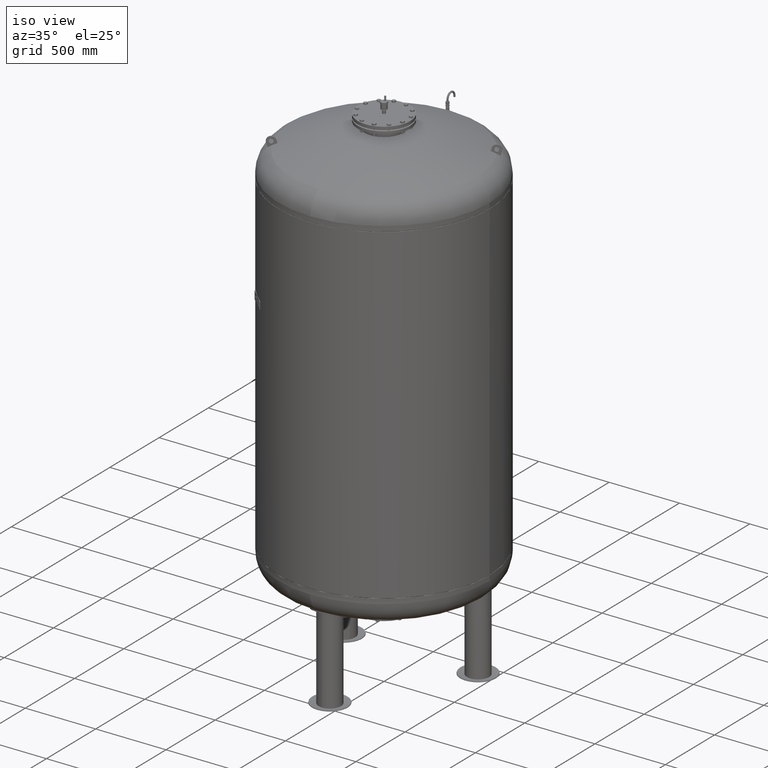
[diagram: clean part render]
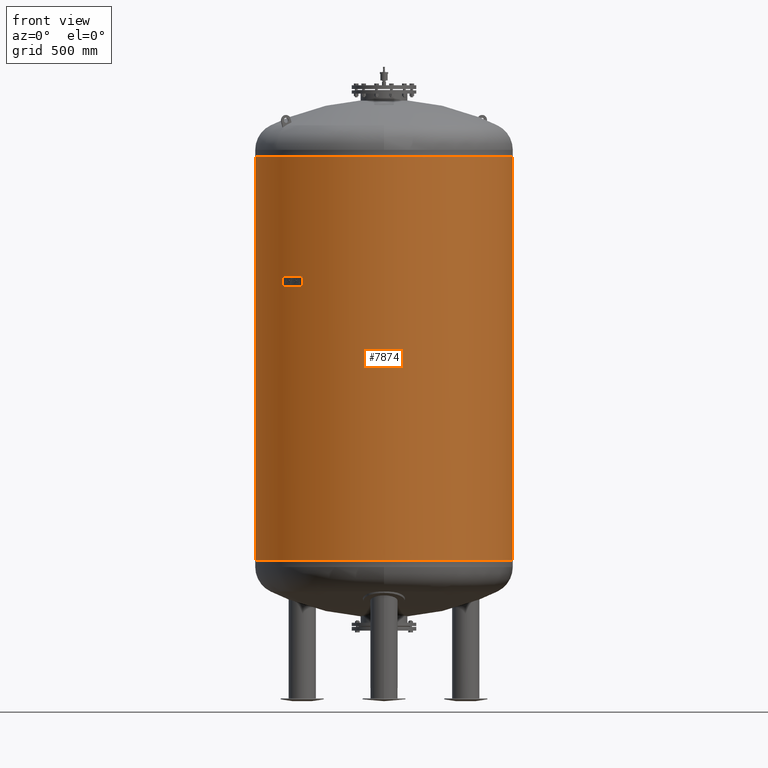
[diagram: tour spotlight — one face highlighted and labeled with its STEP entity id]
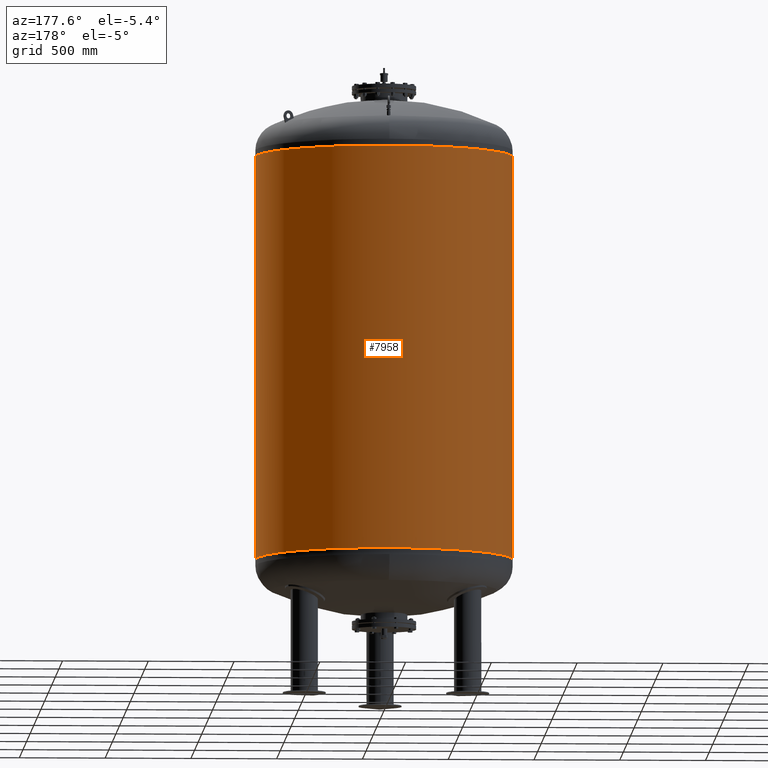
[diagram: tour spotlight — one face highlighted and labeled with its STEP entity id]
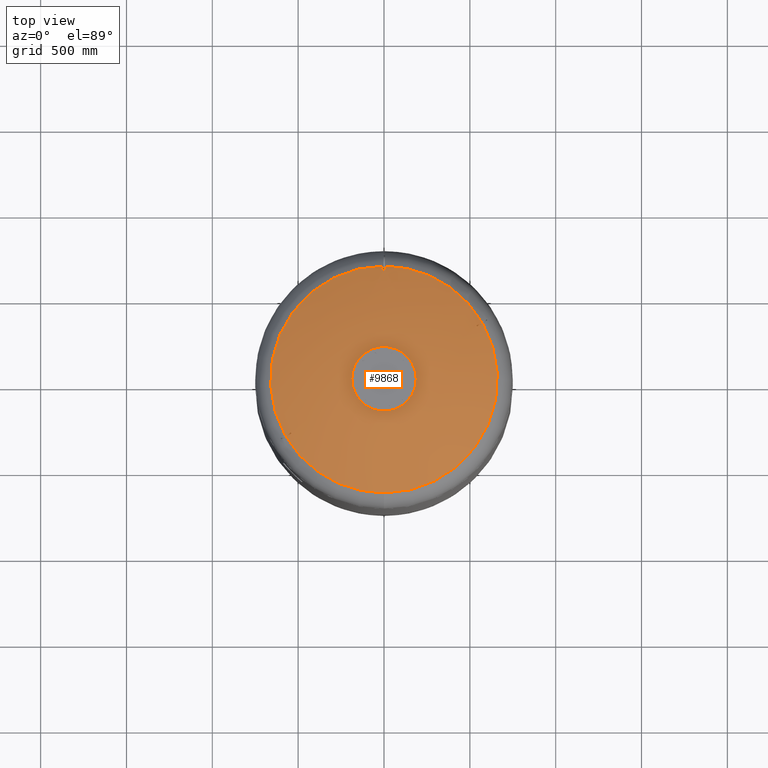
[diagram: tour spotlight — one face highlighted and labeled with its STEP entity id]
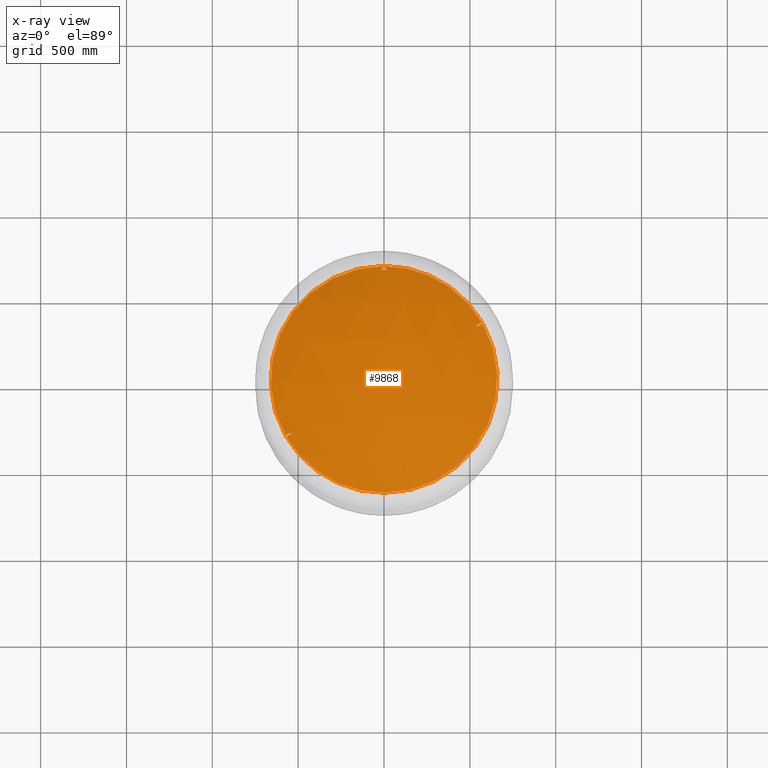
[diagram: x-ray of the same camera — body ghosted, this tour face saturated]
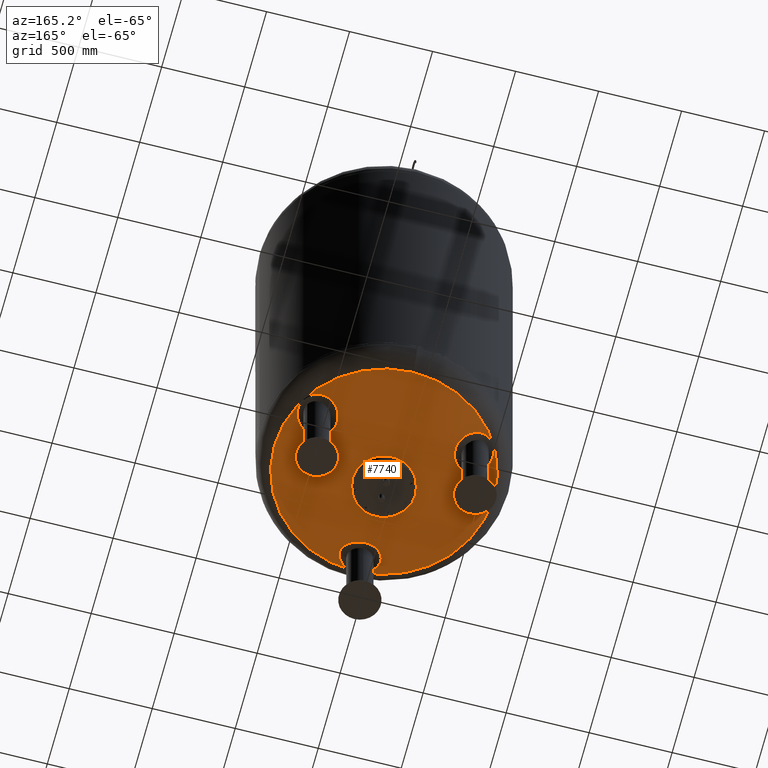
[diagram: tour spotlight — one face highlighted and labeled with its STEP entity id]
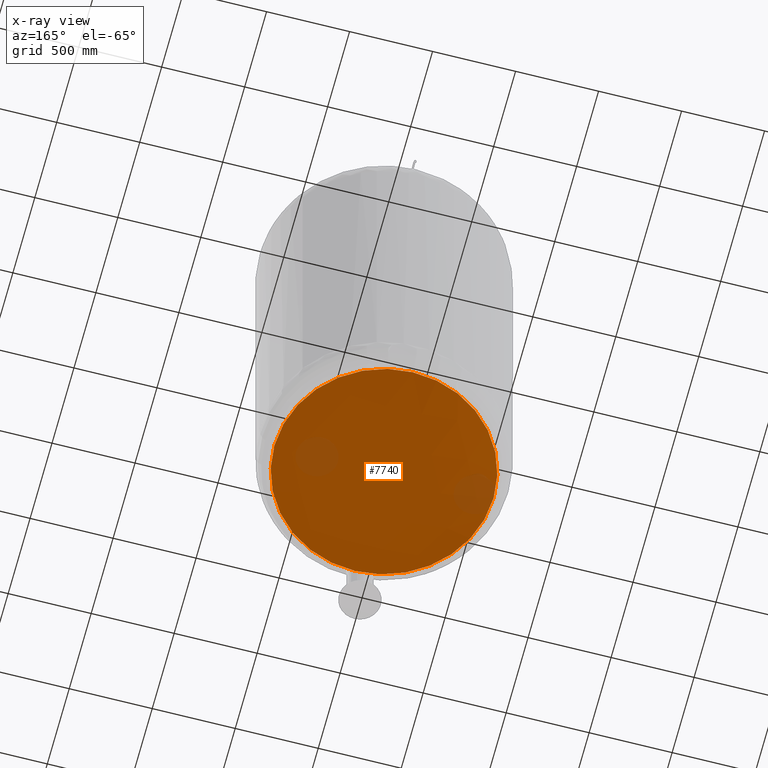
[diagram: x-ray of the same camera — body ghosted, this tour face saturated]
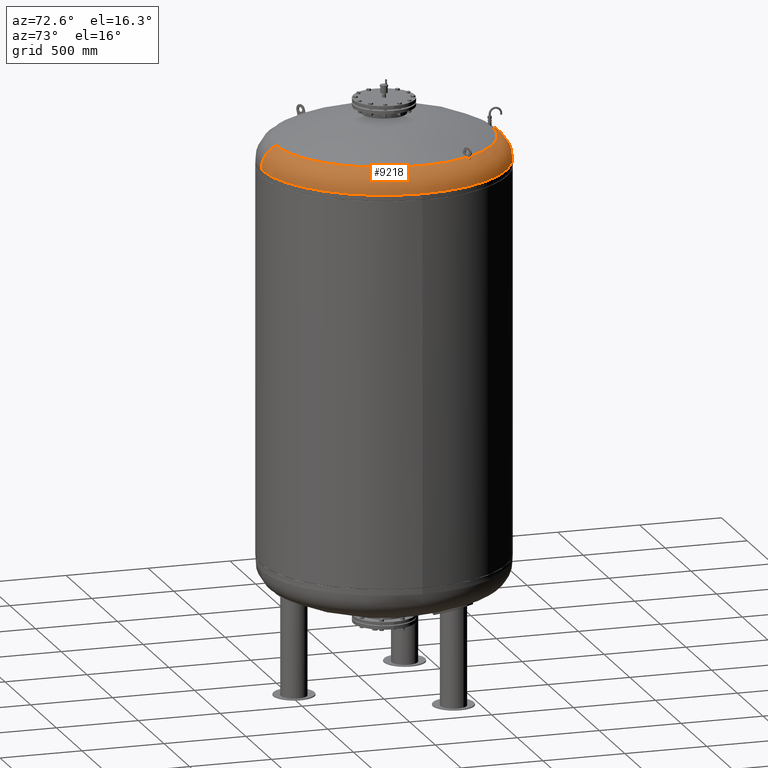
[diagram: tour spotlight — one face highlighted and labeled with its STEP entity id]
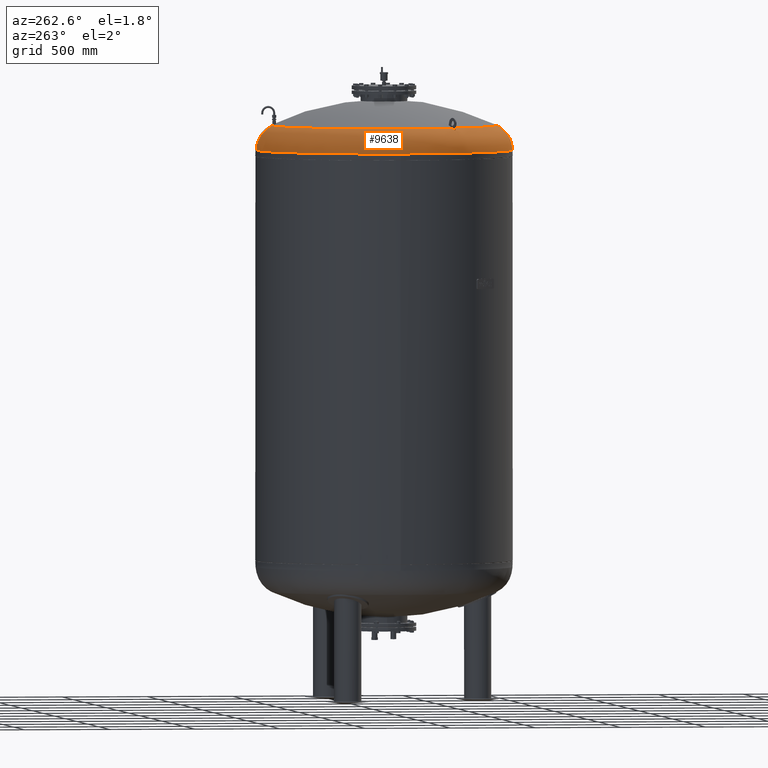
[diagram: tour spotlight — one face highlighted and labeled with its STEP entity id]
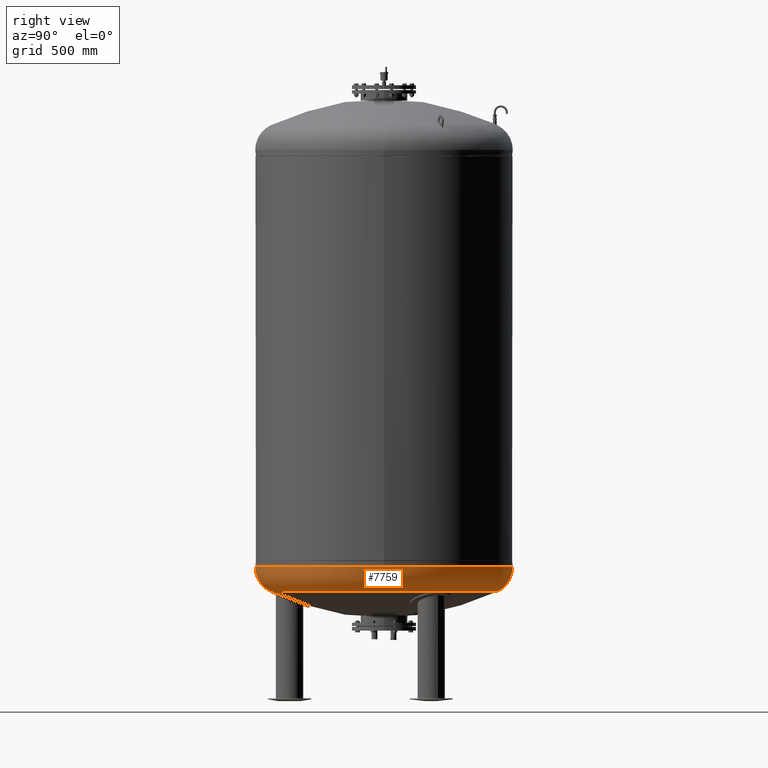
[diagram: tour spotlight — one face highlighted and labeled with its STEP entity id]
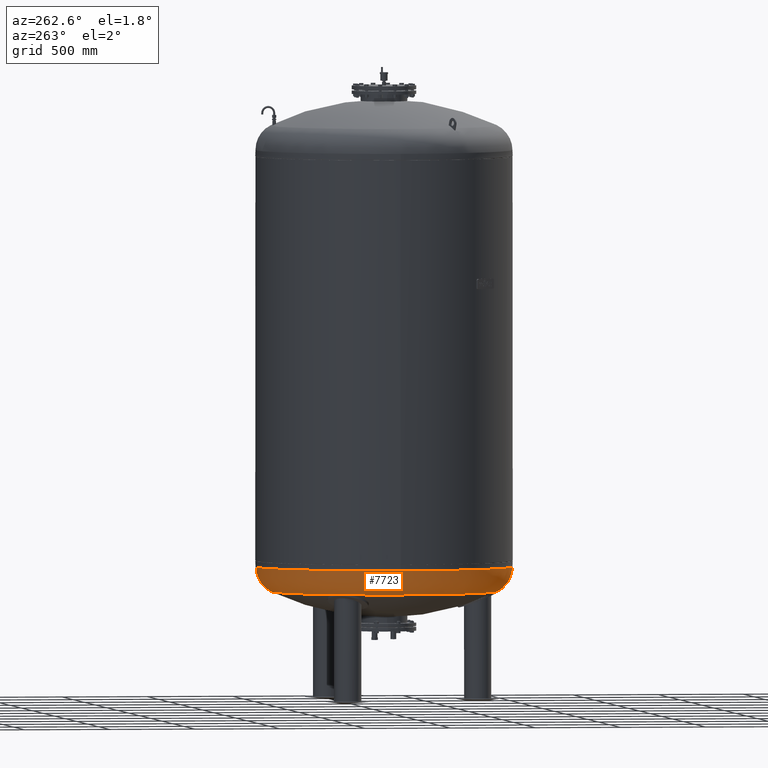
[diagram: tour spotlight — one face highlighted and labeled with its STEP entity id]
A machine part: a face-by-face anatomy tour. The part has 733 B-rep faces; the first image is the clean iso view, then the 8 largest visible faces are spotlighted one at a time (largest first), each with its STEP entity span.

Face 1 — front view, entity #7874. In plain terms, the highlighted cylindrical surface (partial cylindrical patch) has radius 750 mm, axis along (0, 0, 1).
Definition (entity closure, byte-faithful):
#7833=CARTESIAN_POINT('',(8.322769E-015,0.0,2588.500000000000000));
#7834=DIRECTION('',(1.414234E-017,0.0,1.0));
#7835=DIRECTION('',(1.0,0.0,0.0));
#7836=AXIS2_PLACEMENT_3D('',#7833,#7834,#7835);
#7837=CYLINDRICAL_SURFACE('',#7836,750.000000000000910);
#7838=CARTESIAN_POINT('',(750.000000000001360,0.0,3177.0));
#7839=VERTEX_POINT('',#7838);
#7840=CARTESIAN_POINT('',(749.999999999999890,0.0,822.999999999999770));
#7841=VERTEX_POINT('',#7840);
#7842=CARTESIAN_POINT('',(750.000000000001360,0.0,3177.0));
#7843=DIRECTION('',(0.0,0.0,-1.0));
#7844=VECTOR('',#7843,2354.0);
#7845=LINE('',#7842,#7844);
#7846=EDGE_CURVE('',#7839,#7841,#7845,.T.);
#7847=ORIENTED_EDGE('',*,*,#7846,.F.);
#7848=CARTESIAN_POINT('',(-750.000000000000910,-9.184548E-014,3177.0));
#7849=VERTEX_POINT('',#7848);
#7850=CARTESIAN_POINT('',(1.664554E-014,0.0,3177.0));
#7851=DIRECTION('',(0.0,0.0,1.0));
#7852=DIRECTION('',(1.0,0.0,0.0));
#7853=AXIS2_PLACEMENT_3D('',#7850,#7851,#7852);
#7854=CIRCLE('',#7853,750.000000000001360);
#7855=EDGE_CURVE('',#7849,#7839,#7854,.T.);
#7856=ORIENTED_EDGE('',*,*,#7855,.F.);
#7857=CARTESIAN_POINT('',(-749.999999999999770,-9.184548E-014,822.999999999999660));
#7858=VERTEX_POINT('',#7857);
#7859=CARTESIAN_POINT('',(-750.000000000000910,-9.184548E-014,3177.0));
#7860=DIRECTION('',(0.0,0.0,-1.0));
#7861=VECTOR('',#7860,2354.000000000000500);
#7862=LINE('',#7859,#7861);
#7863=EDGE_CURVE('',#7849,#7858,#7862,.T.);
#7864=ORIENTED_EDGE('',*,*,#7863,.T.);
#7865=CARTESIAN_POINT('',(-1.664554E-014,0.0,822.999999999999550));
#7866=DIRECTION('',(0.0,0.0,1.0));
#7867=DIRECTION('',(1.0,0.0,0.0));
#7868=AXIS2_PLACEMENT_3D('',#7865,#7866,#7867);
#7869=CIRCLE('',#7868,749.999999999999890);
#7870=EDGE_CURVE('',#7858,#7841,#7869,.T.);
#7871=ORIENTED_EDGE('',*,*,#7870,.T.);
#7872=EDGE_LOOP('',(#7847,#7856,#7864,#7871));
#7873=FACE_OUTER_BOUND('',#7872,.T.);
#7874=ADVANCED_FACE('',(#7873),#7837,.T.);

Face 2 — auxiliary view, entity #7958. In plain terms, the highlighted cylindrical surface (partial cylindrical patch) has radius 750 mm, axis along (0, 0, 1).
Definition (entity closure, byte-faithful):
#7838=CARTESIAN_POINT('',(750.000000000001360,0.0,3177.0));
#7839=VERTEX_POINT('',#7838);
#7840=CARTESIAN_POINT('',(749.999999999999890,0.0,822.999999999999770));
#7841=VERTEX_POINT('',#7840);
#7842=CARTESIAN_POINT('',(750.000000000001360,0.0,3177.0));
#7843=DIRECTION('',(0.0,0.0,-1.0));
#7844=VECTOR('',#7843,2354.0);
#7845=LINE('',#7842,#7844);
#7846=EDGE_CURVE('',#7839,#7841,#7845,.T.);
#7848=CARTESIAN_POINT('',(-750.000000000000910,-9.184548E-014,3177.0));
#7849=VERTEX_POINT('',#7848);
#7857=CARTESIAN_POINT('',(-749.999999999999770,-9.184548E-014,822.999999999999660));
#7858=VERTEX_POINT('',#7857);
#7859=CARTESIAN_POINT('',(-750.000000000000910,-9.184548E-014,3177.0));
#7860=DIRECTION('',(0.0,0.0,-1.0));
#7861=VECTOR('',#7860,2354.000000000000500);
#7862=LINE('',#7859,#7861);
#7863=EDGE_CURVE('',#7849,#7858,#7862,.T.);
#7931=CARTESIAN_POINT('',(-1.664554E-014,0.0,822.999999999999550));
#7932=DIRECTION('',(0.0,0.0,1.0));
#7933=DIRECTION('',(1.0,0.0,0.0));
#7934=AXIS2_PLACEMENT_3D('',#7931,#7932,#7933);
#7935=CIRCLE('',#7934,749.999999999999890);
#7936=EDGE_CURVE('',#7841,#7858,#7935,.T.);
#7941=CARTESIAN_POINT('',(8.322769E-015,0.0,2588.500000000000000));
#7942=DIRECTION('',(1.414234E-017,0.0,1.0));
#7943=DIRECTION('',(1.0,0.0,0.0));
#7944=AXIS2_PLACEMENT_3D('',#7941,#7942,#7943);
#7945=CYLINDRICAL_SURFACE('',#7944,750.000000000000910);
#7946=ORIENTED_EDGE('',*,*,#7846,.T.);
#7947=ORIENTED_EDGE('',*,*,#7936,.T.);
#7948=ORIENTED_EDGE('',*,*,#7863,.F.);
#7949=CARTESIAN_POINT('',(1.664554E-014,0.0,3177.0));
#7950=DIRECTION('',(0.0,0.0,1.0));
#7951=DIRECTION('',(1.0,0.0,0.0));
#7952=AXIS2_PLACEMENT_3D('',#7949,#7950,#7951);
#7953=CIRCLE('',#7952,750.000000000001360);
#7954=EDGE_CURVE('',#7839,#7849,#7953,.T.);
#7955=ORIENTED_EDGE('',*,*,#7954,.F.);
#7956=EDGE_LOOP('',(#7946,#7947,#7948,#7955));
#7957=FACE_OUTER_BOUND('',#7956,.T.);
#7958=ADVANCED_FACE('',(#7957),#7945,.T.);

Face 3 — top view, entity #9868. An x-ray twin of the same camera follows (body ghosted, this face saturated) — the face is partly hidden behind the body. In plain terms, the highlighted spherical surface has radius 1509 mm.
Definition (entity closure, byte-faithful):
#9132=CARTESIAN_POINT('',(2.782883E-014,-660.606666666666800,3357.716562866229200));
#9133=VERTEX_POINT('',#9132);
#9149=CARTESIAN_POINT('',(1.087271E-013,660.606666666666800,3357.716562866229200));
#9150=VERTEX_POINT('',#9149);
#9158=CARTESIAN_POINT('',(570.596255916202270,332.898003566943030,3357.716562866229200));
#9159=VERTEX_POINT('',#9158);
#9160=CARTESIAN_POINT('',(7.530601E-015,-2.797401E-014,3357.716562866229200));
#9161=DIRECTION('',(0.0,0.0,-1.0));
#9162=DIRECTION('',(1.0,0.0,0.0));
#9163=AXIS2_PLACEMENT_3D('',#9160,#9161,#9162);
#9164=CIRCLE('',#9163,660.606666666666800);
#9165=EDGE_CURVE('',#9150,#9159,#9164,.T.);
#9194=CARTESIAN_POINT('',(573.596255916202270,327.701851144236400,3357.716562866229200));
#9195=VERTEX_POINT('',#9194);
#9209=CARTESIAN_POINT('',(7.530601E-015,-2.797401E-014,3357.716562866229200));
#9210=DIRECTION('',(0.0,0.0,-1.0));
#9211=DIRECTION('',(1.0,0.0,0.0));
#9212=AXIS2_PLACEMENT_3D('',#9209,#9210,#9211);
#9213=CIRCLE('',#9212,660.606666666666800);
#9214=EDGE_CURVE('',#9195,#9133,#9213,.T.);
#9268=CARTESIAN_POINT('',(-1.897978E-015,655.650000000000090,3360.118860696149600));
#9269=VERTEX_POINT('',#9268);
#9285=CARTESIAN_POINT('',(-1.240563E-015,634.350000000000140,3370.189934778954900));
#9286=VERTEX_POINT('',#9285);
#9293=CARTESIAN_POINT('',(-1.897978E-015,655.650000000000090,3360.118860696149600));
#9294=CARTESIAN_POINT('',(0.665404330812075,655.650000000000090,3360.118860696149600));
#9295=CARTESIAN_POINT('',(1.351005238531910,655.586586472611200,3360.148956099280000));
#9296=CARTESIAN_POINT('',(2.709152380359530,655.322864024945490,3360.274102903181800));
#9297=CARTESIAN_POINT('',(3.381714256279836,655.122620744017920,3360.369122863290600));
#9298=CARTESIAN_POINT('',(4.665906970622906,654.598580857008300,3360.617749092760700));
#9299=CARTESIAN_POINT('',(5.278739801402161,654.274335051525900,3360.771567636845200));
#9300=CARTESIAN_POINT('',(6.407722563082133,653.533432843510700,3361.122965029964700));
#9301=CARTESIAN_POINT('',(6.923874650766102,653.116778685511690,3361.320541682071500));
#9302=CARTESIAN_POINT('',(7.889290439644320,652.188962456306400,3361.760401335867800));
#9303=CARTESIAN_POINT('',(8.360621428439794,651.637013011092450,3362.022009760501500));
#9304=CARTESIAN_POINT('',(9.184218306884119,650.440594312454890,3362.588884786357100));
#9305=CARTESIAN_POINT('',(9.536575262430031,649.796175836176530,3362.894126243167600));
#9306=CARTESIAN_POINT('',(10.099226215268940,648.457629366782610,3363.527921196685800));
#9307=CARTESIAN_POINT('',(10.309904511361037,647.762627273321300,3363.856887882093800));
#9308=CARTESIAN_POINT('',(10.585321999158966,646.370108996278190,3364.515766474685300));
#9309=CARTESIAN_POINT('',(10.650000000000000,645.672582847176160,3364.845682896962900));
#9310=CARTESIAN_POINT('',(10.650000000000000,644.327773783445990,3365.481531696811500));
#9311=CARTESIAN_POINT('',(10.585389715432822,643.630518005042630,3365.811092215923500));
#9312=CARTESIAN_POINT('',(10.310158197774065,642.238371078161090,3366.468852435417800));
#9313=CARTESIAN_POINT('',(10.099596713855746,641.543470358319950,3366.797056877939700));
#9314=CARTESIAN_POINT('',(9.537165322407807,640.205009979753980,3367.429000886638700));
#9315=CARTESIAN_POINT('',(9.184909130526176,639.560574217313730,3367.733154802825100));
#9316=CARTESIAN_POINT('',(8.361484811050532,638.364076526992110,3368.297699280516600));
#9317=CARTESIAN_POINT('',(7.890225855511259,637.812066143510040,3368.558066601965000));
#9318=CARTESIAN_POINT('',(6.924750618118365,636.883947430329950,3368.995733923613400));
#9319=CARTESIAN_POINT('',(6.408446699130911,636.467094997367670,3369.192258225785300));
#9320=CARTESIAN_POINT('',(5.279175018932195,635.725897994843080,3369.541632396409100));
#9321=CARTESIAN_POINT('',(4.666205770247577,635.401555709393960,3369.694482302683800));
#9322=CARTESIAN_POINT('',(3.381800145527401,634.877399673759780,3369.941469592940800));
#9323=CARTESIAN_POINT('',(2.709163715388115,634.677136677483300,3370.035819489551600));
#9324=CARTESIAN_POINT('',(1.350949437001924,634.413404190588380,3370.160067323583900));
#9325=CARTESIAN_POINT('',(0.665356121600540,634.350000000000140,3370.189934778954900));
#9326=CARTESIAN_POINT('',(-1.240563E-015,634.350000000000140,3370.189934778954900));
#9327=B_SPLINE_CURVE_WITH_KNOTS('',3,(#9293,#9294,#9295,#9296,#9297,#9298,#9299,#9300,#9301,#9302,#9303,#9304,#9305,#9306,#9307,#9308,#9309,#9310,#9311,#9312,#9313,#9314,#9315,#9316,#9317,#9318,#9319,#9320,#9321,#9322,#9323,#9324,#9325,#9326),.UNSPECIFIED.,.F.,.U.,(4,2,2,2,2,2,2,2,2,2,2,2,2,2,2,2,4),(0.0,1.996212992436229,3.992425984872458,5.988638977308687,7.984851969744916,10.216773795484329,12.448695621223742,14.680617446963154,16.912539272702567,19.143277643240921,21.374016013779276,23.604754384317630,25.835492754855984,27.831561119657607,29.827629484459230,31.823697849260853,33.819766214062476),.UNSPECIFIED.);
#9328=EDGE_CURVE('',#9269,#9286,#9327,.T.);
#9339=CARTESIAN_POINT('',(-1.240563E-015,634.350000000000140,3370.189934778954900));
#9340=CARTESIAN_POINT('',(-0.665356121600537,634.350000000000140,3370.189934778954900));
#9341=CARTESIAN_POINT('',(-1.350949437001913,634.413404190588380,3370.160067323583900));
#9342=CARTESIAN_POINT('',(-2.709163715388091,634.677136677483300,3370.035819489551600));
#9343=CARTESIAN_POINT('',(-3.381800145527372,634.877399673759780,3369.941469592940800));
#9344=CARTESIAN_POINT('',(-4.666205770247546,635.401555709393960,3369.694482302683800));
#9345=CARTESIAN_POINT('',(-5.279175018932203,635.725897994843080,3369.541632396409100));
#9346=CARTESIAN_POINT('',(-6.408446699130908,636.467094997367670,3369.192258225785700));
#9347=CARTESIAN_POINT('',(-6.924750618118371,636.883947430329950,3368.995733923613400));
#9348=CARTESIAN_POINT('',(-7.890225855511268,637.812066143510040,3368.558066601965000));
#9349=CARTESIAN_POINT('',(-8.361484811050458,638.364076526991990,3368.297699280516600));
#9350=CARTESIAN_POINT('',(-9.184909130526131,639.560574217313620,3367.733154802825100));
#9351=CARTESIAN_POINT('',(-9.537165322407807,640.205009979753980,3367.429000886638700));
#9352=CARTESIAN_POINT('',(-10.099596713855753,641.543470358319950,3366.797056877939700));
#9353=CARTESIAN_POINT('',(-10.310158197774072,642.238371078161090,3366.468852435417800));
#9354=CARTESIAN_POINT('',(-10.585389715432829,643.630518005042630,3365.811092215923500));
#9355=CARTESIAN_POINT('',(-10.650000000000004,644.327773783445990,3365.481531696811500));
#9356=CARTESIAN_POINT('',(-10.650000000000004,645.672582847176160,3364.845682896962900));
#9357=CARTESIAN_POINT('',(-10.585321999158971,646.370108996278190,3364.515766474685300));
#9358=CARTESIAN_POINT('',(-10.309904511361040,647.762627273321300,3363.856887882093800));
#9359=CARTESIAN_POINT('',(-10.099226215268944,648.457629366782610,3363.527921196685800));
#9360=CARTESIAN_POINT('',(-9.536575262430034,649.796175836176530,3362.894126243167600));
#9361=CARTESIAN_POINT('',(-9.184218306884123,650.440594312454890,3362.588884786357100));
#9362=CARTESIAN_POINT('',(-8.360621428439798,651.637013011092450,3362.022009760501500));
#9363=CARTESIAN_POINT('',(-7.889290439644324,652.188962456306400,3361.760401335867800));
#9364=CARTESIAN_POINT('',(-6.923874650766106,653.116778685511690,3361.320541682071500));
#9365=CARTESIAN_POINT('',(-6.407722563082133,653.533432843510700,3361.122965029964700));
#9366=CARTESIAN_POINT('',(-5.278739801402160,654.274335051525900,3360.771567636845200));
#9367=CARTESIAN_POINT('',(-4.665906970622908,654.598580857008300,3360.617749092760700));
#9368=CARTESIAN_POINT('',(-3.381714256279838,655.122620744017920,3360.369122863290600));
#9369=CARTESIAN_POINT('',(-2.709152380359532,655.322864024945490,3360.274102903181800));
#9370=CARTESIAN_POINT('',(-1.351005238531913,655.586586472611200,3360.148956099280000));
#9371=CARTESIAN_POINT('',(-0.665404330812078,655.650000000000090,3360.118860696149600));
#9372=CARTESIAN_POINT('',(-1.897978E-015,655.650000000000090,3360.118860696149600));
#9373=B_SPLINE_CURVE_WITH_KNOTS('',3,(#9339,#9340,#9341,#9342,#9343,#9344,#9345,#9346,#9347,#9348,#9349,#9350,#9351,#9352,#9353,#9354,#9355,#9356,#9357,#9358,#9359,#9360,#9361,#9362,#9363,#9364,#9365,#9366,#9367,#9368,#9369,#9370,#9371,#9372),.UNSPECIFIED.,.F.,.U.,(4,2,2,2,2,2,2,2,2,2,2,2,2,2,2,2,4),(33.819766214062476,35.815834578864084,37.811902943665700,39.807971308467316,41.804039673268932,44.034778043807307,46.265516414345683,48.496254784884059,50.726993155422434,52.958914981161847,55.190836806901260,57.422758632640672,59.654680458380085,61.650893450816312,63.647106443252540,65.643319435688767,67.639532428124994),.UNSPECIFIED.);
#9374=EDGE_CURVE('',#9286,#9269,#9373,.T.);
#9402=CARTESIAN_POINT('',(-570.596255916196580,-332.898003566952920,3357.716562866229700));
#9403=VERTEX_POINT('',#9402);
#9419=CARTESIAN_POINT('',(-539.004547741172360,-314.658522347942950,3374.879584180558100));
#9420=VERTEX_POINT('',#9419);
#9421=CARTESIAN_POINT('',(1.500000000005994,-2.598076211363742,2001.0));
#9422=DIRECTION('',(0.499999999999994,-0.866025403784442,0.0));
#9423=DIRECTION('',(0.0,0.0,1.0));
#9424=AXIS2_PLACEMENT_3D('',#9421,#9422,#9423);
#9425=CIRCLE('',#9424,1508.997017889697400);
#9426=EDGE_CURVE('',#9420,#9403,#9425,.T.);
#9469=CARTESIAN_POINT('',(-542.004547741172470,-309.462369925236320,3374.879584180558100));
#9470=VERTEX_POINT('',#9469);
#9471=CARTESIAN_POINT('',(-195.850324208316520,-113.074237402545550,1938.348481320245600));
#9472=DIRECTION('',(0.834590199910602,0.481850876581402,0.266981143436977));
#9473=DIRECTION('',(0.0,0.484652475916135,-0.874706795211036));
#9474=AXIS2_PLACEMENT_3D('',#9471,#9472,#9473);
#9475=CIRCLE('',#9474,1490.641692208577100);
#9476=EDGE_CURVE('',#9470,#9420,#9475,.T.);
#9554=CARTESIAN_POINT('',(-573.596255916196580,-327.701851144246290,3357.716562866229700));
#9555=VERTEX_POINT('',#9554);
#9578=CARTESIAN_POINT('',(-1.499999999993967,2.598076211342912,2001.0));
#9579=DIRECTION('',(-0.499999999999994,0.866025403784442,0.0));
#9580=DIRECTION('',(0.0,0.0,-1.0));
#9581=AXIS2_PLACEMENT_3D('',#9578,#9579,#9580);
#9582=CIRCLE('',#9581,1508.997017889697400);
#9583=EDGE_CURVE('',#9555,#9470,#9582,.T.);
#9610=CARTESIAN_POINT('',(7.530601E-015,-2.797401E-014,3357.716562866229200));
#9611=DIRECTION('',(0.0,0.0,-1.0));
#9612=DIRECTION('',(1.0,0.0,0.0));
#9613=AXIS2_PLACEMENT_3D('',#9610,#9611,#9612);
#9614=CIRCLE('',#9613,660.606666666666800);
#9615=EDGE_CURVE('',#9133,#9403,#9614,.T.);
#9620=CARTESIAN_POINT('',(7.530601E-015,-2.797401E-014,3357.716562866229200));
#9621=DIRECTION('',(0.0,0.0,-1.0));
#9622=DIRECTION('',(1.0,0.0,0.0));
#9623=AXIS2_PLACEMENT_3D('',#9620,#9621,#9622);
#9624=CIRCLE('',#9623,660.606666666666800);
#9625=EDGE_CURVE('',#9555,#9150,#9624,.T.);
#9645=CARTESIAN_POINT('',(539.004547741178380,314.658522347932720,3374.879584180558100));
#9646=VERTEX_POINT('',#9645);
#9647=CARTESIAN_POINT('',(-1.499999999993948,2.598076211342792,2001.0));
#9648=DIRECTION('',(-0.500000000000006,0.866025403784435,0.0));
#9649=DIRECTION('',(0.0,0.0,-1.0));
#9650=AXIS2_PLACEMENT_3D('',#9647,#9648,#9649);
#9651=CIRCLE('',#9650,1508.997017889697400);
#9652=EDGE_CURVE('',#9646,#9159,#9651,.T.);
#9695=CARTESIAN_POINT('',(542.004547741178380,309.462369925225970,3374.879584180558100));
#9696=VERTEX_POINT('',#9695);
#9697=CARTESIAN_POINT('',(195.850324208315390,113.074237402547780,1938.348481320245400));
#9698=DIRECTION('',(-0.834590199910595,-0.481850876581413,0.266981143436977));
#9699=DIRECTION('',(0.0,0.484652475916126,0.874706795211040));
#9700=AXIS2_PLACEMENT_3D('',#9697,#9698,#9699);
#9701=CIRCLE('',#9700,1490.641692208577100);
#9702=EDGE_CURVE('',#9696,#9646,#9701,.T.);
#9833=CARTESIAN_POINT('',(1.500000000006090,-2.598076211363818,2001.0));
#9834=DIRECTION('',(0.500000000000006,-0.866025403784435,0.0));
#9835=DIRECTION('',(0.0,0.0,1.0));
#9836=AXIS2_PLACEMENT_3D('',#9833,#9834,#9835);
#9837=CIRCLE('',#9836,1508.997017889697400);
#9838=EDGE_CURVE('',#9195,#9696,#9837,.T.);
#9847=CARTESIAN_POINT('',(1.607048E-013,-2.771988E-013,2001.0));
#9848=DIRECTION('',(0.0,-1.0,0.0));
#9849=DIRECTION('',(-1.0,0.0,0.0));
#9850=AXIS2_PLACEMENT_3D('',#9847,#9848,#9849);
#9851=SPHERICAL_SURFACE('',#9850,1509.0);
#9852=ORIENTED_EDGE('',*,*,#9328,.T.);
#9853=ORIENTED_EDGE('',*,*,#9374,.T.);
#9854=EDGE_LOOP('',(#9852,#9853));
#9855=FACE_OUTER_BOUND('',#9854,.T.);
#9856=ORIENTED_EDGE('',*,*,#9426,.T.);
#9857=ORIENTED_EDGE('',*,*,#9615,.F.);
#9858=ORIENTED_EDGE('',*,*,#9214,.F.);
#9859=ORIENTED_EDGE('',*,*,#9838,.T.);
#9860=ORIENTED_EDGE('',*,*,#9702,.T.);
#9861=ORIENTED_EDGE('',*,*,#9652,.T.);
#9862=ORIENTED_EDGE('',*,*,#9165,.F.);
#9863=ORIENTED_EDGE('',*,*,#9625,.F.);
#9864=ORIENTED_EDGE('',*,*,#9583,.T.);
#9865=ORIENTED_EDGE('',*,*,#9476,.T.);
#9866=EDGE_LOOP('',(#9856,#9857,#9858,#9859,#9860,#9861,#9862,#9863,#9864,#9865));
#9867=FACE_BOUND('',#9866,.T.);
#9868=ADVANCED_FACE('',(#9855,#9867),#9851,.T.);

Face 4 — auxiliary view, entity #7740. An x-ray twin of the same camera follows (body ghosted, this face saturated) — the face is partly hidden behind the body. In plain terms, the highlighted spherical surface has radius 1509 mm.
Definition (entity closure, byte-faithful):
#7679=CARTESIAN_POINT('',(-4.647817E-014,-660.606666666666800,642.283437133770350));
#7680=VERTEX_POINT('',#7679);
#7696=CARTESIAN_POINT('',(-1.273765E-013,660.606666666666800,642.283437133770800));
#7697=VERTEX_POINT('',#7696);
#7705=CARTESIAN_POINT('',(-660.606666666666800,-2.797401E-014,642.283437133770460));
#7706=VERTEX_POINT('',#7705);
#7707=CARTESIAN_POINT('',(-2.617994E-014,-2.797401E-014,642.283437133770580));
#7708=DIRECTION('',(0.0,0.0,1.0));
#7709=DIRECTION('',(-1.0,0.0,0.0));
#7710=AXIS2_PLACEMENT_3D('',#7707,#7708,#7709);
#7711=CIRCLE('',#7710,660.606666666666800);
#7712=EDGE_CURVE('',#7697,#7706,#7711,.T.);
#7714=CARTESIAN_POINT('',(-2.617994E-014,-2.797401E-014,642.283437133770580));
#7715=DIRECTION('',(0.0,0.0,1.0));
#7716=DIRECTION('',(-1.0,0.0,0.0));
#7717=AXIS2_PLACEMENT_3D('',#7714,#7715,#7716);
#7718=CIRCLE('',#7717,660.606666666666800);
#7719=EDGE_CURVE('',#7706,#7680,#7718,.T.);
#7724=CARTESIAN_POINT('',(-3.455040E-013,-2.771988E-013,1999.0));
#7725=DIRECTION('',(0.0,-1.0,0.0));
#7726=DIRECTION('',(1.0,0.0,0.0));
#7727=AXIS2_PLACEMENT_3D('',#7724,#7725,#7726);
#7728=SPHERICAL_SURFACE('',#7727,1509.0);
#7729=ORIENTED_EDGE('',*,*,#7719,.F.);
#7730=ORIENTED_EDGE('',*,*,#7712,.F.);
#7731=CARTESIAN_POINT('',(-2.617994E-014,-2.797401E-014,642.283437133770580));
#7732=DIRECTION('',(0.0,0.0,1.0));
#7733=DIRECTION('',(-1.0,0.0,0.0));
#7734=AXIS2_PLACEMENT_3D('',#7731,#7732,#7733);
#7735=CIRCLE('',#7734,660.606666666666800);
#7736=EDGE_CURVE('',#7680,#7697,#7735,.T.);
#7737=ORIENTED_EDGE('',*,*,#7736,.F.);
#7738=EDGE_LOOP('',(#7729,#7730,#7737));
#7739=FACE_OUTER_BOUND('',#7738,.T.);
#7740=ADVANCED_FACE('',(#7739),#7728,.T.);

Face 5 — auxiliary view, entity #9218. In plain terms, the highlighted toroidal blend (fillet) surface has major radius 591 mm and minor (blend) radius 159 mm.
Definition (entity closure, byte-faithful):
#9018=CARTESIAN_POINT('',(750.0,-5.423428E-014,3214.762332584101800));
#9019=VERTEX_POINT('',#9018);
#9043=CARTESIAN_POINT('',(1.267436E-013,750.0,3214.762332584101800));
#9044=VERTEX_POINT('',#9043);
#9052=CARTESIAN_POINT('',(1.459986E-014,-5.423428E-014,3214.762332584101800));
#9053=DIRECTION('',(0.0,0.0,-1.0));
#9054=DIRECTION('',(1.0,0.0,0.0));
#9055=AXIS2_PLACEMENT_3D('',#9052,#9053,#9054);
#9056=CIRCLE('',#9055,750.0);
#9057=EDGE_CURVE('',#9044,#9019,#9056,.T.);
#9125=CARTESIAN_POINT('',(3.489809E-014,-5.423428E-014,3214.762332584101800));
#9126=DIRECTION('',(4.945121E-017,-1.836970E-016,-1.0));
#9127=DIRECTION('',(0.0,-1.0,0.0));
#9128=AXIS2_PLACEMENT_3D('',#9125,#9126,#9127);
#9129=TOROIDAL_SURFACE('',#9128,591.0,159.0);
#9130=CARTESIAN_POINT('',(3.489809E-014,-750.0,3214.762332584101800));
#9131=VERTEX_POINT('',#9130);
#9132=CARTESIAN_POINT('',(2.782883E-014,-660.606666666666800,3357.716562866229200));
#9133=VERTEX_POINT('',#9132);
#9134=CARTESIAN_POINT('',(3.489809E-014,-591.0,3214.762332584101800));
#9135=DIRECTION('',(-1.0,0.0,0.0));
#9136=DIRECTION('',(0.0,-1.0,0.0));
#9137=AXIS2_PLACEMENT_3D('',#9134,#9135,#9136);
#9138=CIRCLE('',#9137,159.0);
#9139=EDGE_CURVE('',#9131,#9133,#9138,.T.);
#9140=ORIENTED_EDGE('',*,*,#9139,.F.);
#9141=CARTESIAN_POINT('',(1.459986E-014,-5.423428E-014,3214.762332584101800));
#9142=DIRECTION('',(0.0,0.0,-1.0));
#9143=DIRECTION('',(1.0,0.0,0.0));
#9144=AXIS2_PLACEMENT_3D('',#9141,#9142,#9143);
#9145=CIRCLE('',#9144,750.0);
#9146=EDGE_CURVE('',#9019,#9131,#9145,.T.);
#9147=ORIENTED_EDGE('',*,*,#9146,.F.);
#9148=ORIENTED_EDGE('',*,*,#9057,.F.);
#9149=CARTESIAN_POINT('',(1.087271E-013,660.606666666666800,3357.716562866229200));
#9150=VERTEX_POINT('',#9149);
#9151=CARTESIAN_POINT('',(1.072723E-013,591.0,3214.762332584101800));
#9152=DIRECTION('',(1.0,0.0,0.0));
#9153=DIRECTION('',(0.0,1.0,0.0));
#9154=AXIS2_PLACEMENT_3D('',#9151,#9152,#9153);
#9155=CIRCLE('',#9154,159.0);
#9156=EDGE_CURVE('',#9044,#9150,#9155,.T.);
#9157=ORIENTED_EDGE('',*,*,#9156,.T.);
#9158=CARTESIAN_POINT('',(570.596255916202270,332.898003566943030,3357.716562866229200));
#9159=VERTEX_POINT('',#9158);
#9160=CARTESIAN_POINT('',(7.530601E-015,-2.797401E-014,3357.716562866229200));
#9161=DIRECTION('',(0.0,0.0,-1.0));
#9162=DIRECTION('',(1.0,0.0,0.0));
#9163=AXIS2_PLACEMENT_3D('',#9160,#9161,#9162);
#9164=CIRCLE('',#9163,660.606666666666800);
#9165=EDGE_CURVE('',#9150,#9159,#9164,.T.);
#9166=ORIENTED_EDGE('',*,*,#9165,.T.);
#9167=CARTESIAN_POINT('',(588.588482349337030,343.285820341434260,3345.575471650438900));
#9168=VERTEX_POINT('',#9167);
#9169=CARTESIAN_POINT('',(570.596255916202270,332.898003566943030,3357.716562866229200));
#9170=CARTESIAN_POINT('',(572.054041405254220,333.739656411467930,3356.896943261032400));
#9171=CARTESIAN_POINT('',(573.514867502697370,334.583064752065810,3356.038760350182700));
#9172=CARTESIAN_POINT('',(576.976511612975400,336.581645910973690,3353.912932457119000));
#9173=CARTESIAN_POINT('',(578.974781685762880,337.735347675411160,3352.612126014599200));
#9174=CARTESIAN_POINT('',(582.931774475123920,340.019918527530190,3349.881544856047600));
#9175=CARTESIAN_POINT('',(584.890496100696050,341.150786985321820,3348.451768031998700));
#9176=CARTESIAN_POINT('',(587.410277309621960,342.605583344594150,3346.507652363015000));
#9177=CARTESIAN_POINT('',(588.001091399301120,342.946690018311470,3346.044094471851200));
#9178=CARTESIAN_POINT('',(588.588482349337030,343.285820341434260,3345.575471650438900));
#9179=B_SPLINE_CURVE_WITH_KNOTS('',3,(#9169,#9170,#9171,#9172,#9173,#9174,#9175,#9176,#9177,#9178),.UNSPECIFIED.,.F.,.U.,(4,2,2,2,4),(774.656358350488740,780.010685689572260,787.369273058092740,794.727860426613230,796.996990205935960),.UNSPECIFIED.);
#9180=EDGE_CURVE('',#9159,#9168,#9179,.T.);
#9181=ORIENTED_EDGE('',*,*,#9180,.T.);
#9182=CARTESIAN_POINT('',(591.588482349336690,338.089667918727570,3345.575471650438900));
#9183=VERTEX_POINT('',#9182);
#9184=CARTESIAN_POINT('',(588.588482349337030,343.285820341434260,3345.575471650438900));
#9185=CARTESIAN_POINT('',(589.090111222559810,342.418391231101340,3345.578030124753200));
#9186=CARTESIAN_POINT('',(589.590425441357980,341.552525995023070,3345.579301453786200));
#9187=CARTESIAN_POINT('',(590.089401200233620,340.688274628905390,3345.579301453786200));
#9188=CARTESIAN_POINT('',(590.588376959112570,339.824023262781680,3345.579301453786200));
#9189=CARTESIAN_POINT('',(591.088081140414260,338.957805821382750,3345.578030124753200));
#9190=CARTESIAN_POINT('',(591.588482349336690,338.089667918727570,3345.575471650438900));
#9191=B_SPLINE_CURVE_WITH_KNOTS('',3,(#9184,#9185,#9186,#9187,#9188,#9189,#9190),.UNSPECIFIED.,.F.,.U.,(4,3,4),(-2.993854553253430,0.0,2.993854553273963),.UNSPECIFIED.);
#9192=EDGE_CURVE('',#9168,#9183,#9191,.T.);
#9193=ORIENTED_EDGE('',*,*,#9192,.T.);
#9194=CARTESIAN_POINT('',(573.596255916202270,327.701851144236400,3357.716562866229200));
#9195=VERTEX_POINT('',#9194);
#9196=CARTESIAN_POINT('',(591.588482349336690,338.089667918727570,3345.575471650438900));
#9197=CARTESIAN_POINT('',(591.001034993602270,337.750505029759610,3346.044139472540300));
#9198=CARTESIAN_POINT('',(590.410163811151510,337.409365393515030,3346.507741414689900));
#9199=CARTESIAN_POINT('',(587.890327860486420,335.954537429084780,3348.451893026950100));
#9200=CARTESIAN_POINT('',(585.931609407500670,334.823670802986780,3349.881663004374300));
#9201=CARTESIAN_POINT('',(581.974623379374860,332.539103854468750,3352.612231014925300));
#9202=CARTESIAN_POINT('',(579.976356895234860,331.385404161938030,3353.913031156073000));
#9203=CARTESIAN_POINT('',(576.514766784393940,329.386854179619720,3356.038819520509200));
#9204=CARTESIAN_POINT('',(575.053991207979040,328.543475007350930,3356.896971483751700));
#9205=CARTESIAN_POINT('',(573.596255916202270,327.701851144236400,3357.716562866229200));
#9206=B_SPLINE_CURVE_WITH_KNOTS('',3,(#9196,#9197,#9198,#9199,#9200,#9201,#9202,#9203,#9204,#9205),.UNSPECIFIED.,.F.,.U.,(4,2,2,2,4),(144.901644365231360,147.170992146182750,154.529560626149700,161.888129106116650,167.242268222433860),.UNSPECIFIED.);
#9207=EDGE_CURVE('',#9183,#9195,#9206,.T.);
#9208=ORIENTED_EDGE('',*,*,#9207,.T.);
#9209=CARTESIAN_POINT('',(7.530601E-015,-2.797401E-014,3357.716562866229200));
#9210=DIRECTION('',(0.0,0.0,-1.0));
#9211=DIRECTION('',(1.0,0.0,0.0));
#9212=AXIS2_PLACEMENT_3D('',#9209,#9210,#9211);
#9213=CIRCLE('',#9212,660.606666666666800);
#9214=EDGE_CURVE('',#9195,#9133,#9213,.T.);
#9215=ORIENTED_EDGE('',*,*,#9214,.T.);
#9216=EDGE_LOOP('',(#9140,#9147,#9148,#9157,#9166,#9181,#9193,#9208,#9215));
#9217=FACE_OUTER_BOUND('',#9216,.T.);
#9218=ADVANCED_FACE('',(#9217),#9129,.T.);

Face 6 — auxiliary view, entity #9638. In plain terms, the highlighted toroidal blend (fillet) surface has major radius 591 mm and minor (blend) radius 159 mm.
Definition (entity closure, byte-faithful):
#9035=CARTESIAN_POINT('',(-750.0,3.761120E-014,3214.762332584101800));
#9036=VERTEX_POINT('',#9035);
#9043=CARTESIAN_POINT('',(1.267436E-013,750.0,3214.762332584101800));
#9044=VERTEX_POINT('',#9043);
#9045=CARTESIAN_POINT('',(1.459986E-014,-5.423428E-014,3214.762332584101800));
#9046=DIRECTION('',(0.0,0.0,-1.0));
#9047=DIRECTION('',(1.0,0.0,0.0));
#9048=AXIS2_PLACEMENT_3D('',#9045,#9046,#9047);
#9049=CIRCLE('',#9048,750.0);
#9050=EDGE_CURVE('',#9036,#9044,#9049,.T.);
#9130=CARTESIAN_POINT('',(3.489809E-014,-750.0,3214.762332584101800));
#9131=VERTEX_POINT('',#9130);
#9132=CARTESIAN_POINT('',(2.782883E-014,-660.606666666666800,3357.716562866229200));
#9133=VERTEX_POINT('',#9132);
#9134=CARTESIAN_POINT('',(3.489809E-014,-591.0,3214.762332584101800));
#9135=DIRECTION('',(-1.0,0.0,0.0));
#9136=DIRECTION('',(0.0,-1.0,0.0));
#9137=AXIS2_PLACEMENT_3D('',#9134,#9135,#9136);
#9138=CIRCLE('',#9137,159.0);
#9139=EDGE_CURVE('',#9131,#9133,#9138,.T.);
#9149=CARTESIAN_POINT('',(1.087271E-013,660.606666666666800,3357.716562866229200));
#9150=VERTEX_POINT('',#9149);
#9151=CARTESIAN_POINT('',(1.072723E-013,591.0,3214.762332584101800));
#9152=DIRECTION('',(1.0,0.0,0.0));
#9153=DIRECTION('',(0.0,1.0,0.0));
#9154=AXIS2_PLACEMENT_3D('',#9151,#9152,#9153);
#9155=CIRCLE('',#9154,159.0);
#9156=EDGE_CURVE('',#9044,#9150,#9155,.T.);
#9402=CARTESIAN_POINT('',(-570.596255916196580,-332.898003566952920,3357.716562866229700));
#9403=VERTEX_POINT('',#9402);
#9404=CARTESIAN_POINT('',(-588.588482349331340,-343.285820341443810,3345.575471650438900));
#9405=VERTEX_POINT('',#9404);
#9406=CARTESIAN_POINT('',(-570.596255916196580,-332.898003566952920,3357.716562866229700));
#9407=CARTESIAN_POINT('',(-572.053991207973350,-333.739627430067460,3356.896971483751700));
#9408=CARTESIAN_POINT('',(-573.514766784388030,-334.583006602336130,3356.038819520509200));
#9409=CARTESIAN_POINT('',(-576.976356895228950,-336.581556584654270,3353.913031156073000));
#9410=CARTESIAN_POINT('',(-578.974623379368950,-337.735256277185040,3352.612231014925300));
#9411=CARTESIAN_POINT('',(-582.931609407494880,-340.019823225703130,3349.881663004374300));
#9412=CARTESIAN_POINT('',(-584.890327860480620,-341.150689851801190,3348.451893026950500));
#9413=CARTESIAN_POINT('',(-587.410163811145820,-342.605517816231330,3346.507741414689900));
#9414=CARTESIAN_POINT('',(-588.001034993596930,-342.946657452475790,3346.044139472540300));
#9415=CARTESIAN_POINT('',(-588.588482349331340,-343.285820341443810,3345.575471650438900));
#9416=B_SPLINE_CURVE_WITH_KNOTS('',3,(#9406,#9407,#9408,#9409,#9410,#9411,#9412,#9413,#9414,#9415),.UNSPECIFIED.,.F.,.U.,(4,2,2,2,4),(774.656357685334110,780.010496801651020,787.369065281617960,794.727633761584910,796.996981542536560),.UNSPECIFIED.);
#9417=EDGE_CURVE('',#9403,#9405,#9416,.T.);
#9519=CARTESIAN_POINT('',(-591.588482349331340,-338.089667918737230,3345.575471650438900));
#9520=VERTEX_POINT('',#9519);
#9521=CARTESIAN_POINT('',(-588.588482349331340,-343.285820341443810,3345.575471650438900));
#9522=CARTESIAN_POINT('',(-589.090111222557650,-342.418391231104920,3345.578030124753200));
#9523=CARTESIAN_POINT('',(-589.590425441359340,-341.552525995020690,3345.579301453786200));
#9524=CARTESIAN_POINT('',(-590.089401200238290,-340.688274628897030,3345.579301453786200));
#9525=CARTESIAN_POINT('',(-590.588376959113930,-339.824023262779290,3345.579301453786200));
#9526=CARTESIAN_POINT('',(-591.088081140412330,-338.957805821386390,3345.578030124753200));
#9527=CARTESIAN_POINT('',(-591.588482349331340,-338.089667918737230,3345.575471650438900));
#9528=B_SPLINE_CURVE_WITH_KNOTS('',3,(#9521,#9522,#9523,#9524,#9525,#9526,#9527),.UNSPECIFIED.,.F.,.U.,(4,3,4),(-2.993854553274037,0.0,2.993854553253479),.UNSPECIFIED.);
#9529=EDGE_CURVE('',#9405,#9520,#9528,.T.);
#9554=CARTESIAN_POINT('',(-573.596255916196580,-327.701851144246290,3357.716562866229700));
#9555=VERTEX_POINT('',#9554);
#9556=CARTESIAN_POINT('',(-591.588482349331340,-338.089667918737230,3345.575471650438900));
#9557=CARTESIAN_POINT('',(-591.001091399295430,-337.750537595614450,3346.044094471851200));
#9558=CARTESIAN_POINT('',(-590.410277309616280,-337.409430921897070,3346.507652363015000));
#9559=CARTESIAN_POINT('',(-587.890496100690370,-335.954634562624850,3348.451768031998700));
#9560=CARTESIAN_POINT('',(-585.931774475118230,-334.823766104833230,3349.881544856047600));
#9561=CARTESIAN_POINT('',(-581.974781685757190,-332.539195252714250,3352.612126014599200));
#9562=CARTESIAN_POINT('',(-579.976511612969600,-331.385493488276780,3353.912932457119000));
#9563=CARTESIAN_POINT('',(-576.514867502691460,-329.386912329369070,3356.038760350182700));
#9564=CARTESIAN_POINT('',(-575.054041405248540,-328.543503988771140,3356.896943261032400));
#9565=CARTESIAN_POINT('',(-573.596255916196580,-327.701851144246290,3357.716562866229700));
#9566=B_SPLINE_CURVE_WITH_KNOTS('',3,(#9556,#9557,#9558,#9559,#9560,#9561,#9562,#9563,#9564,#9565),.UNSPECIFIED.,.F.,.U.,(4,2,2,2,4),(144.901635701804910,147.170765481127490,154.529352849647950,161.887940218168410,167.242267557251490),.UNSPECIFIED.);
#9567=EDGE_CURVE('',#9520,#9555,#9566,.T.);
#9604=CARTESIAN_POINT('',(3.489809E-014,-5.423428E-014,3214.762332584101800));
#9605=DIRECTION('',(4.945121E-017,-1.836970E-016,-1.0));
#9606=DIRECTION('',(0.0,-1.0,0.0));
#9607=AXIS2_PLACEMENT_3D('',#9604,#9605,#9606);
#9608=TOROIDAL_SURFACE('',#9607,591.0,159.0);
#9609=ORIENTED_EDGE('',*,*,#9139,.T.);
#9610=CARTESIAN_POINT('',(7.530601E-015,-2.797401E-014,3357.716562866229200));
#9611=DIRECTION('',(0.0,0.0,-1.0));
#9612=DIRECTION('',(1.0,0.0,0.0));
#9613=AXIS2_PLACEMENT_3D('',#9610,#9611,#9612);
#9614=CIRCLE('',#9613,660.606666666666800);
#9615=EDGE_CURVE('',#9133,#9403,#9614,.T.);
#9616=ORIENTED_EDGE('',*,*,#9615,.T.);
#9617=ORIENTED_EDGE('',*,*,#9417,.T.);
#9618=ORIENTED_EDGE('',*,*,#9529,.T.);
#9619=ORIENTED_EDGE('',*,*,#9567,.T.);
#9620=CARTESIAN_POINT('',(7.530601E-015,-2.797401E-014,3357.716562866229200));
#9621=DIRECTION('',(0.0,0.0,-1.0));
#9622=DIRECTION('',(1.0,0.0,0.0));
#9623=AXIS2_PLACEMENT_3D('',#9620,#9621,#9622);
#9624=CIRCLE('',#9623,660.606666666666800);
#9625=EDGE_CURVE('',#9555,#9150,#9624,.T.);
#9626=ORIENTED_EDGE('',*,*,#9625,.T.);
#9627=ORIENTED_EDGE('',*,*,#9156,.F.);
#9628=ORIENTED_EDGE('',*,*,#9050,.F.);
#9629=CARTESIAN_POINT('',(1.459986E-014,-5.423428E-014,3214.762332584101800));
#9630=DIRECTION('',(0.0,0.0,-1.0));
#9631=DIRECTION('',(1.0,0.0,0.0));
#9632=AXIS2_PLACEMENT_3D('',#9629,#9630,#9631);
#9633=CIRCLE('',#9632,750.0);
#9634=EDGE_CURVE('',#9131,#9036,#9633,.T.);
#9635=ORIENTED_EDGE('',*,*,#9634,.F.);
#9636=EDGE_LOOP('',(#9609,#9616,#9617,#9618,#9619,#9626,#9627,#9628,#9635));
#9637=FACE_OUTER_BOUND('',#9636,.T.);
#9638=ADVANCED_FACE('',(#9637),#9608,.T.);

Face 7 — right view, entity #7759. In plain terms, the highlighted toroidal blend (fillet) surface has major radius 591 mm and minor (blend) radius 159 mm.
Definition (entity closure, byte-faithful):
#7645=CARTESIAN_POINT('',(750.0,3.761120E-014,785.237667415898160));
#7646=VERTEX_POINT('',#7645);
#7653=CARTESIAN_POINT('',(-1.628998E-013,750.0,785.237667415898270));
#7654=VERTEX_POINT('',#7653);
#7655=CARTESIAN_POINT('',(-5.075605E-014,-5.423428E-014,785.237667415898160));
#7656=DIRECTION('',(0.0,0.0,1.0));
#7657=DIRECTION('',(-1.0,0.0,0.0));
#7658=AXIS2_PLACEMENT_3D('',#7655,#7656,#7657);
#7659=CIRCLE('',#7658,750.0);
#7660=EDGE_CURVE('',#7646,#7654,#7659,.T.);
#7677=CARTESIAN_POINT('',(-7.105427E-014,-750.0,785.237667415898040));
#7678=VERTEX_POINT('',#7677);
#7679=CARTESIAN_POINT('',(-4.647817E-014,-660.606666666666800,642.283437133770350));
#7680=VERTEX_POINT('',#7679);
#7681=CARTESIAN_POINT('',(-7.105427E-014,-591.0,785.237667415898040));
#7682=DIRECTION('',(1.0,0.0,0.0));
#7683=DIRECTION('',(0.0,-1.0,0.0));
#7684=AXIS2_PLACEMENT_3D('',#7681,#7682,#7683);
#7685=CIRCLE('',#7684,159.0);
#7686=EDGE_CURVE('',#7678,#7680,#7685,.T.);
#7696=CARTESIAN_POINT('',(-1.273765E-013,660.606666666666800,642.283437133770800));
#7697=VERTEX_POINT('',#7696);
#7698=CARTESIAN_POINT('',(-1.434285E-013,591.0,785.237667415898270));
#7699=DIRECTION('',(-1.0,0.0,0.0));
#7700=DIRECTION('',(0.0,1.0,0.0));
#7701=AXIS2_PLACEMENT_3D('',#7698,#7699,#7700);
#7702=CIRCLE('',#7701,159.0);
#7703=EDGE_CURVE('',#7654,#7697,#7702,.T.);
#7731=CARTESIAN_POINT('',(-2.617994E-014,-2.797401E-014,642.283437133770580));
#7732=DIRECTION('',(0.0,0.0,1.0));
#7733=DIRECTION('',(-1.0,0.0,0.0));
#7734=AXIS2_PLACEMENT_3D('',#7731,#7732,#7733);
#7735=CIRCLE('',#7734,660.606666666666800);
#7736=EDGE_CURVE('',#7680,#7697,#7735,.T.);
#7741=CARTESIAN_POINT('',(-7.105427E-014,-5.423428E-014,785.237667415898160));
#7742=DIRECTION('',(-1.719159E-016,-1.836970E-016,1.0));
#7743=DIRECTION('',(0.0,-1.0,0.0));
#7744=AXIS2_PLACEMENT_3D('',#7741,#7742,#7743);
#7745=TOROIDAL_SURFACE('',#7744,591.0,159.0);
#7746=ORIENTED_EDGE('',*,*,#7686,.T.);
#7747=ORIENTED_EDGE('',*,*,#7736,.T.);
#7748=ORIENTED_EDGE('',*,*,#7703,.F.);
#7749=ORIENTED_EDGE('',*,*,#7660,.F.);
#7750=CARTESIAN_POINT('',(-5.075605E-014,-5.423428E-014,785.237667415898160));
#7751=DIRECTION('',(0.0,0.0,1.0));
#7752=DIRECTION('',(-1.0,0.0,0.0));
#7753=AXIS2_PLACEMENT_3D('',#7750,#7751,#7752);
#7754=CIRCLE('',#7753,750.0);
#7755=EDGE_CURVE('',#7678,#7646,#7754,.T.);
#7756=ORIENTED_EDGE('',*,*,#7755,.F.);
#7757=EDGE_LOOP('',(#7746,#7747,#7748,#7749,#7756));
#7758=FACE_OUTER_BOUND('',#7757,.T.);
#7759=ADVANCED_FACE('',(#7758),#7745,.T.);

Face 8 — auxiliary view, entity #7723. In plain terms, the highlighted toroidal blend (fillet) surface has major radius 591 mm and minor (blend) radius 159 mm.
Definition (entity closure, byte-faithful):
#7628=CARTESIAN_POINT('',(-750.0,-5.423428E-014,785.237667415897930));
#7629=VERTEX_POINT('',#7628);
#7653=CARTESIAN_POINT('',(-1.628998E-013,750.0,785.237667415898270));
#7654=VERTEX_POINT('',#7653);
#7662=CARTESIAN_POINT('',(-5.075605E-014,-5.423428E-014,785.237667415898160));
#7663=DIRECTION('',(0.0,0.0,1.0));
#7664=DIRECTION('',(-1.0,0.0,0.0));
#7665=AXIS2_PLACEMENT_3D('',#7662,#7663,#7664);
#7666=CIRCLE('',#7665,750.0);
#7667=EDGE_CURVE('',#7654,#7629,#7666,.T.);
#7672=CARTESIAN_POINT('',(-7.105427E-014,-5.423428E-014,785.237667415898160));
#7673=DIRECTION('',(-1.719159E-016,-1.836970E-016,1.0));
#7674=DIRECTION('',(0.0,-1.0,0.0));
#7675=AXIS2_PLACEMENT_3D('',#7672,#7673,#7674);
#7676=TOROIDAL_SURFACE('',#7675,591.0,159.0);
#7677=CARTESIAN_POINT('',(-7.105427E-014,-750.0,785.237667415898040));
#7678=VERTEX_POINT('',#7677);
#7679=CARTESIAN_POINT('',(-4.647817E-014,-660.606666666666800,642.283437133770350));
#7680=VERTEX_POINT('',#7679);
#7681=CARTESIAN_POINT('',(-7.105427E-014,-591.0,785.237667415898040));
#7682=DIRECTION('',(1.0,0.0,0.0));
#7683=DIRECTION('',(0.0,-1.0,0.0));
#7684=AXIS2_PLACEMENT_3D('',#7681,#7682,#7683);
#7685=CIRCLE('',#7684,159.0);
#7686=EDGE_CURVE('',#7678,#7680,#7685,.T.);
#7687=ORIENTED_EDGE('',*,*,#7686,.F.);
#7688=CARTESIAN_POINT('',(-5.075605E-014,-5.423428E-014,785.237667415898160));
#7689=DIRECTION('',(0.0,0.0,1.0));
#7690=DIRECTION('',(-1.0,0.0,0.0));
#7691=AXIS2_PLACEMENT_3D('',#7688,#7689,#7690);
#7692=CIRCLE('',#7691,750.0);
#7693=EDGE_CURVE('',#7629,#7678,#7692,.T.);
#7694=ORIENTED_EDGE('',*,*,#7693,.F.);
#7695=ORIENTED_EDGE('',*,*,#7667,.F.);
#7696=CARTESIAN_POINT('',(-1.273765E-013,660.606666666666800,642.283437133770800));
#7697=VERTEX_POINT('',#7696);
#7698=CARTESIAN_POINT('',(-1.434285E-013,591.0,785.237667415898270));
#7699=DIRECTION('',(-1.0,0.0,0.0));
#7700=DIRECTION('',(0.0,1.0,0.0));
#7701=AXIS2_PLACEMENT_3D('',#7698,#7699,#7700);
#7702=CIRCLE('',#7701,159.0);
#7703=EDGE_CURVE('',#7654,#7697,#7702,.T.);
#7704=ORIENTED_EDGE('',*,*,#7703,.T.);
#7705=CARTESIAN_POINT('',(-660.606666666666800,-2.797401E-014,642.283437133770460));
#7706=VERTEX_POINT('',#7705);
#7707=CARTESIAN_POINT('',(-2.617994E-014,-2.797401E-014,642.283437133770580));
#7708=DIRECTION('',(0.0,0.0,1.0));
#7709=DIRECTION('',(-1.0,0.0,0.0));
#7710=AXIS2_PLACEMENT_3D('',#7707,#7708,#7709);
#7711=CIRCLE('',#7710,660.606666666666800);
#7712=EDGE_CURVE('',#7697,#7706,#7711,.T.);
#7713=ORIENTED_EDGE('',*,*,#7712,.T.);
#7714=CARTESIAN_POINT('',(-2.617994E-014,-2.797401E-014,642.283437133770580));
#7715=DIRECTION('',(0.0,0.0,1.0));
#7716=DIRECTION('',(-1.0,0.0,0.0));
#7717=AXIS2_PLACEMENT_3D('',#7714,#7715,#7716);
#7718=CIRCLE('',#7717,660.606666666666800);
#7719=EDGE_CURVE('',#7706,#7680,#7718,.T.);
#7720=ORIENTED_EDGE('',*,*,#7719,.T.);
#7721=EDGE_LOOP('',(#7687,#7694,#7695,#7704,#7713,#7720));
#7722=FACE_OUTER_BOUND('',#7721,.T.);
#7723=ADVANCED_FACE('',(#7722),#7676,.T.);